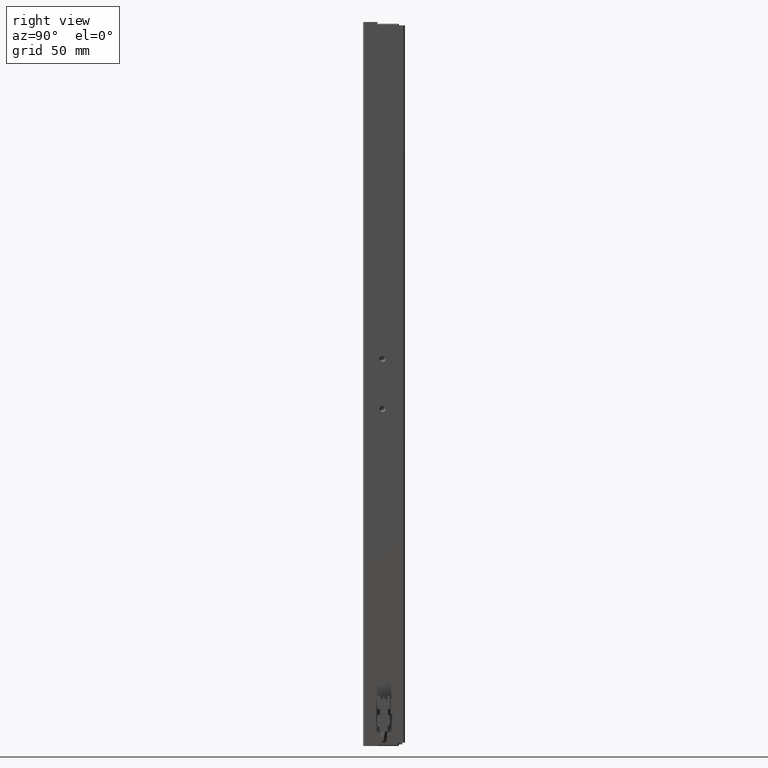
[diagram: clean part render]
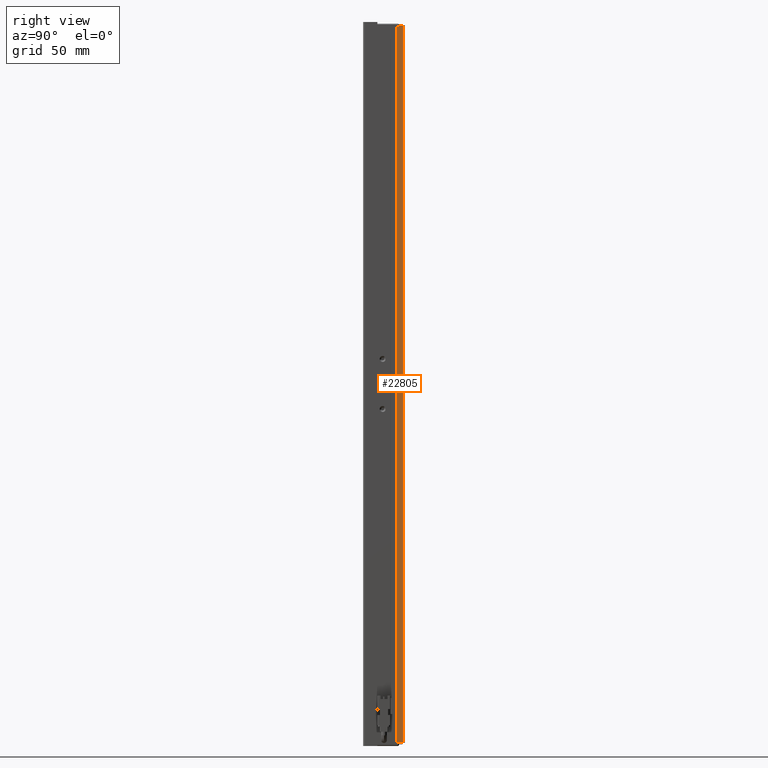
[diagram: same view with one face highlighted and labeled with its STEP entity id]
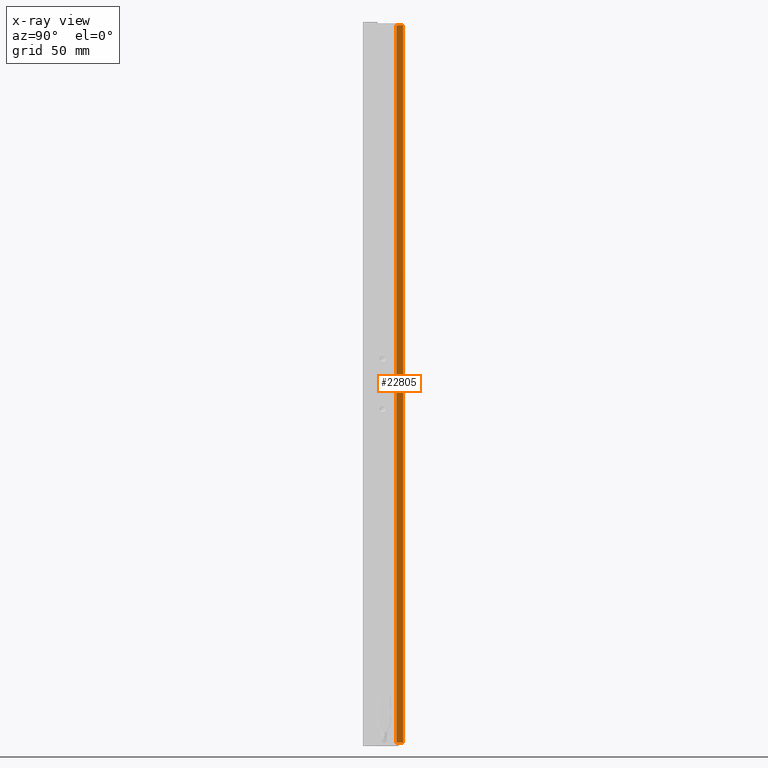
[diagram: x-ray of the same camera — body ghosted, the highlighted face saturated]
A machine part, right view. The second image highlights one B-rep face of the part: STEP entity #22805.
The next image is the same camera in x-ray: the body ghosted, the highlighted face saturated — about 0% of this face is hidden behind the body in this view.
In plain terms, the highlighted planar face has unit normal (-1, 0, 0).
Its self-contained STEP definition (entity closure, byte-faithful):
#601 = LINE ( 'NONE', #8582, #33520 ) ;
#2583 = CARTESIAN_POINT ( 'NONE',  ( 55.92537974683542500, 34.69594479660387500, -330.0000000000000000 ) ) ;
#6039 = LINE ( 'NONE', #49326, #67551 ) ;
#8582 = CARTESIAN_POINT ( 'NONE',  ( 55.92537974683542500, 30.69594479660386800, 102.0000000000000000 ) ) ;
#13731 = ORIENTED_EDGE ( 'NONE', *, *, #37642, .F. ) ;
#13760 = FACE_OUTER_BOUND ( 'NONE', #76201, .T. ) ;
#16613 = EDGE_CURVE ( 'NONE', #26380, #25333, #44500, .T. ) ;
#16957 = PLANE ( 'NONE',  #41971 ) ;
#22805 = ADVANCED_FACE ( 'NONE', ( #13760 ), #16957, .F. ) ;
#25333 = VERTEX_POINT ( 'NONE', #46939 ) ;
#26380 = VERTEX_POINT ( 'NONE', #2583 ) ;
#32447 = CARTESIAN_POINT ( 'NONE',  ( 55.92537974683542500, 30.69594479660386800, 99.99999999999998600 ) ) ;
#33110 = DIRECTION ( 'NONE',  ( -0.0000000000000000000, -1.000000000000000000, -0.0000000000000000000 ) ) ;
#33520 = VECTOR ( 'NONE', #51289, 1000.000000000000000 ) ;
#35806 = ORIENTED_EDGE ( 'NONE', *, *, #67837, .T. ) ;
#35811 = CARTESIAN_POINT ( 'NONE',  ( 55.92537974683542500, 7.083797468354437600, 102.0000000000000000 ) ) ;
#37642 = EDGE_CURVE ( 'NONE', #42245, #26380, #6039, .T. ) ;
#40203 = VECTOR ( 'NONE', #33110, 1000.000000000000000 ) ;
#40904 = DIRECTION ( 'NONE',  ( -0.0000000000000000000, -1.000000000000000000, -0.0000000000000000000 ) ) ;
#41971 = AXIS2_PLACEMENT_3D ( 'NONE', #35811, #78546, #41973 ) ;
#41973 = DIRECTION ( 'NONE',  ( 0.0000000000000000000, 0.0000000000000000000, 1.000000000000000000 ) ) ;
#42245 = VERTEX_POINT ( 'NONE', #58471 ) ;
#44500 = LINE ( 'NONE', #47272, #77026 ) ;
#46939 = CARTESIAN_POINT ( 'NONE',  ( 55.92537974683542500, 30.69594479660386800, -330.0000000000000000 ) ) ;
#47272 = CARTESIAN_POINT ( 'NONE',  ( 55.92537974683542500, 35.69594479660387500, -330.0000000000000000 ) ) ;
#49144 = VERTEX_POINT ( 'NONE', #32447 ) ;
#49326 = CARTESIAN_POINT ( 'NONE',  ( 55.92537974683542500, 34.69594479660387500, 102.0000000000000000 ) ) ;
#51289 = DIRECTION ( 'NONE',  ( 0.0000000000000000000, 0.0000000000000000000, 1.000000000000000000 ) ) ;
#56406 = LINE ( 'NONE', #57684, #40203 ) ;
#57684 = CARTESIAN_POINT ( 'NONE',  ( 55.92537974683542500, 35.69594479660387500, 99.99999999999998600 ) ) ;
#58471 = CARTESIAN_POINT ( 'NONE',  ( 55.92537974683542500, 34.69594479660387500, 99.99999999999998600 ) ) ;
#59643 = ORIENTED_EDGE ( 'NONE', *, *, #67005, .F. ) ;
#66533 = ORIENTED_EDGE ( 'NONE', *, *, #16613, .F. ) ;
#67005 = EDGE_CURVE ( 'NONE', #25333, #49144, #601, .T. ) ;
#67551 = VECTOR ( 'NONE', #73954, 1000.000000000000000 ) ;
#67837 = EDGE_CURVE ( 'NONE', #42245, #49144, #56406, .T. ) ;
#73954 = DIRECTION ( 'NONE',  ( -0.0000000000000000000, -0.0000000000000000000, -1.000000000000000000 ) ) ;
#76201 = EDGE_LOOP ( 'NONE', ( #35806, #59643, #66533, #13731 ) ) ;
#77026 = VECTOR ( 'NONE', #40904, 1000.000000000000000 ) ;
#78546 = DIRECTION ( 'NONE',  ( -1.000000000000000000, 0.0000000000000000000, 0.0000000000000000000 ) ) ;